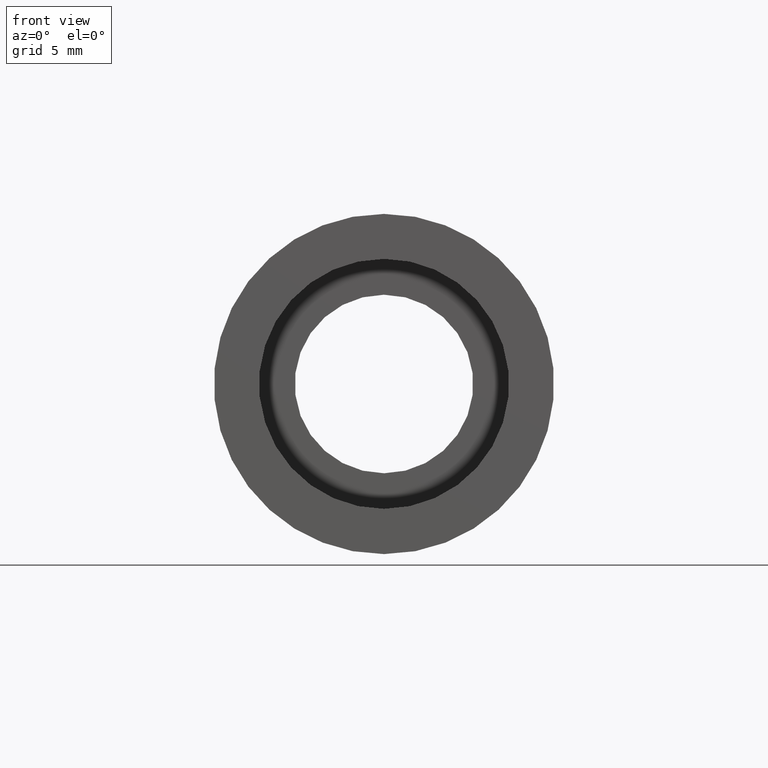
[diagram: clean part render]
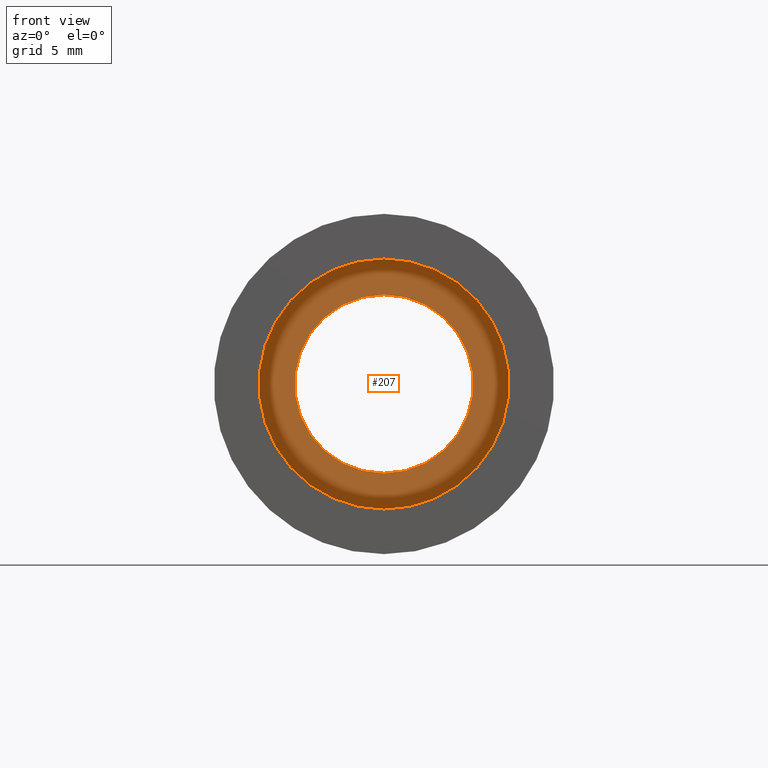
[diagram: same view with one face highlighted and labeled with its STEP entity id]
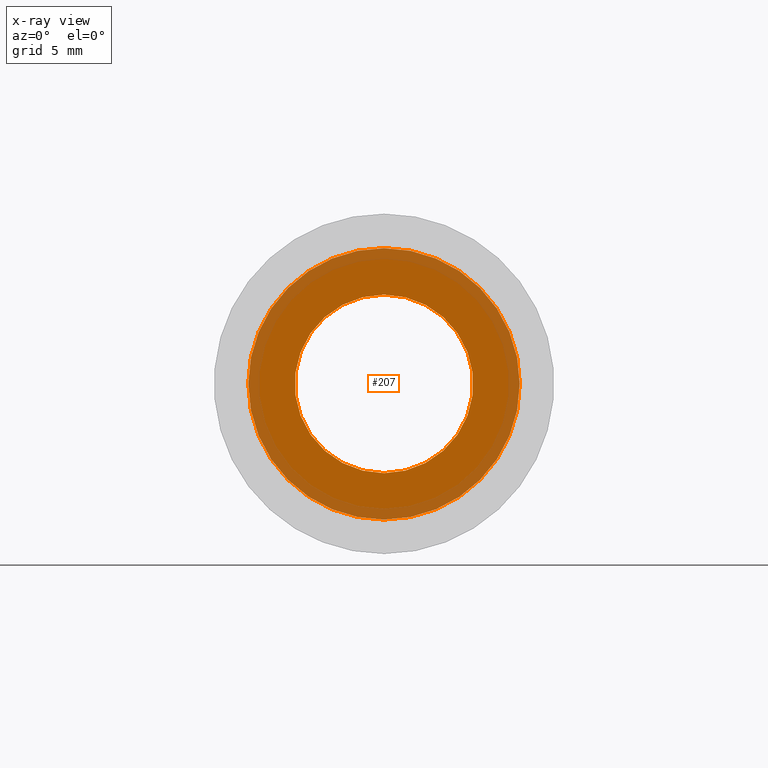
[diagram: x-ray of the same camera — body ghosted, the highlighted face saturated]
A machine part, front view. The second image highlights one B-rep face of the part: STEP entity #207.
The next image is the same camera in x-ray: the body ghosted, the highlighted face saturated — about 27% of this face is hidden behind the body in this view.
In plain terms, the highlighted planar face has unit normal (-0, 1, 0).
Its self-contained STEP definition (entity closure, byte-faithful):
#17 = CARTESIAN_POINT ( 'NONE',  ( 0.0000000000000000000, 5.499999999999976900, 7.600000000000019200 ) ) ;
#18 = DIRECTION ( 'NONE',  ( 0.0000000000000000000, 0.0000000000000000000, 1.000000000000000000 ) ) ;
#25 = AXIS2_PLACEMENT_3D ( 'NONE', #182, #300, #437 ) ;
#32 = CARTESIAN_POINT ( 'NONE',  ( 0.0000000000000000000, 5.499999999999976900, 0.0000000000000000000 ) ) ;
#34 = EDGE_CURVE ( 'NONE', #52, #388, #561, .T. ) ;
#52 = VERTEX_POINT ( 'NONE', #603 ) ;
#65 = CARTESIAN_POINT ( 'NONE',  ( 0.0000000000000000000, 5.499999999999976900, 5.000000000000019500 ) ) ;
#80 = CIRCLE ( 'NONE', #292, 5.000000000000019500 ) ;
#107 = CIRCLE ( 'NONE', #606, 5.000000000000019500 ) ;
#117 = VERTEX_POINT ( 'NONE', #570 ) ;
#132 = DIRECTION ( 'NONE',  ( -0.0000000000000000000, 1.000000000000000000, -0.0000000000000000000 ) ) ;
#134 = AXIS2_PLACEMENT_3D ( 'NONE', #544, #262, #18 ) ;
#177 = ORIENTED_EDGE ( 'NONE', *, *, #34, .F. ) ;
#182 = CARTESIAN_POINT ( 'NONE',  ( 5.000000000000019500, 5.499999999999983100, 0.0000000000000000000 ) ) ;
#183 = ORIENTED_EDGE ( 'NONE', *, *, #185, .T. ) ;
#185 = EDGE_CURVE ( 'NONE', #382, #117, #80, .T. ) ;
#207 = ADVANCED_FACE ( 'NONE', ( #537, #408 ), #284, .F. ) ;
#224 = DIRECTION ( 'NONE',  ( -0.0000000000000000000, 1.000000000000000000, -0.0000000000000000000 ) ) ;
#238 = DIRECTION ( 'NONE',  ( 0.0000000000000000000, 0.0000000000000000000, 1.000000000000000000 ) ) ;
#262 = DIRECTION ( 'NONE',  ( -0.0000000000000000000, 1.000000000000000000, -0.0000000000000000000 ) ) ;
#268 = ORIENTED_EDGE ( 'NONE', *, *, #565, .T. ) ;
#272 = DIRECTION ( 'NONE',  ( 0.0000000000000000000, 0.0000000000000000000, 1.000000000000000000 ) ) ;
#280 = DIRECTION ( 'NONE',  ( 0.0000000000000000000, 0.0000000000000000000, 1.000000000000000000 ) ) ;
#284 = PLANE ( 'NONE',  #25 ) ;
#292 = AXIS2_PLACEMENT_3D ( 'NONE', #376, #426, #238 ) ;
#300 = DIRECTION ( 'NONE',  ( -0.0000000000000000000, 1.000000000000000000, 0.0000000000000000000 ) ) ;
#376 = CARTESIAN_POINT ( 'NONE',  ( 0.0000000000000000000, 5.499999999999976900, 0.0000000000000000000 ) ) ;
#382 = VERTEX_POINT ( 'NONE', #65 ) ;
#388 = VERTEX_POINT ( 'NONE', #17 ) ;
#408 = FACE_BOUND ( 'NONE', #513, .T. ) ;
#426 = DIRECTION ( 'NONE',  ( -0.0000000000000000000, 1.000000000000000000, -0.0000000000000000000 ) ) ;
#437 = DIRECTION ( 'NONE',  ( 0.0000000000000000000, 0.0000000000000000000, 1.000000000000000000 ) ) ;
#448 = AXIS2_PLACEMENT_3D ( 'NONE', #32, #224, #280 ) ;
#461 = CIRCLE ( 'NONE', #134, 7.600000000000019200 ) ;
#487 = EDGE_CURVE ( 'NONE', #388, #52, #461, .T. ) ;
#513 = EDGE_LOOP ( 'NONE', ( #183, #268 ) ) ;
#537 = FACE_OUTER_BOUND ( 'NONE', #564, .T. ) ;
#539 = ORIENTED_EDGE ( 'NONE', *, *, #487, .F. ) ;
#544 = CARTESIAN_POINT ( 'NONE',  ( 0.0000000000000000000, 5.499999999999976900, 0.0000000000000000000 ) ) ;
#553 = CARTESIAN_POINT ( 'NONE',  ( 0.0000000000000000000, 5.499999999999976900, 0.0000000000000000000 ) ) ;
#561 = CIRCLE ( 'NONE', #448, 7.600000000000019200 ) ;
#564 = EDGE_LOOP ( 'NONE', ( #539, #177 ) ) ;
#565 = EDGE_CURVE ( 'NONE', #117, #382, #107, .T. ) ;
#570 = CARTESIAN_POINT ( 'NONE',  ( 6.123233995736789000E-016, 5.499999999999976900, -5.000000000000019500 ) ) ;
#603 = CARTESIAN_POINT ( 'NONE',  ( 9.307315673519907200E-016, 5.499999999999976900, -7.600000000000019200 ) ) ;
#606 = AXIS2_PLACEMENT_3D ( 'NONE', #553, #132, #272 ) ;